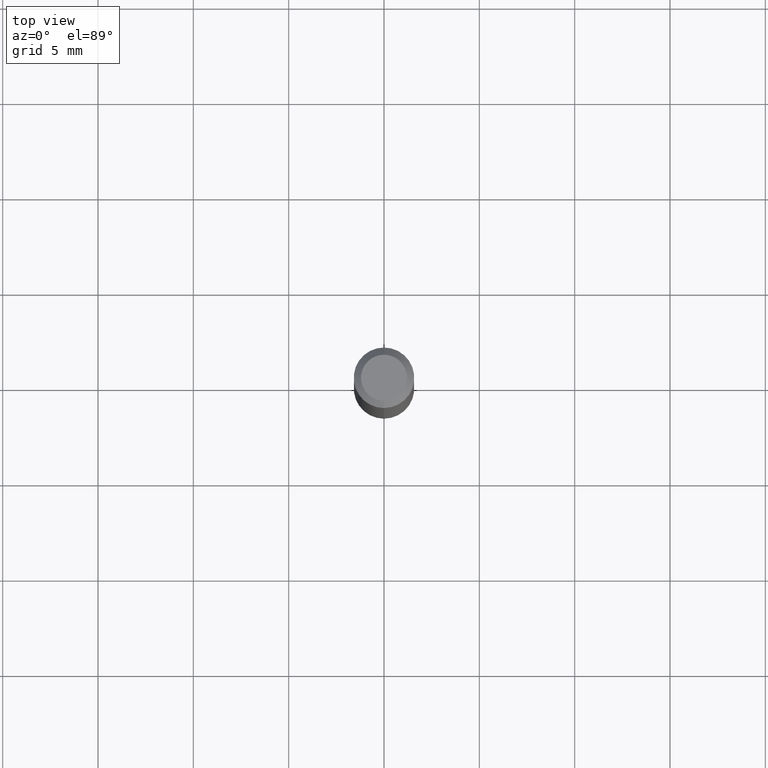
[diagram: clean part render]
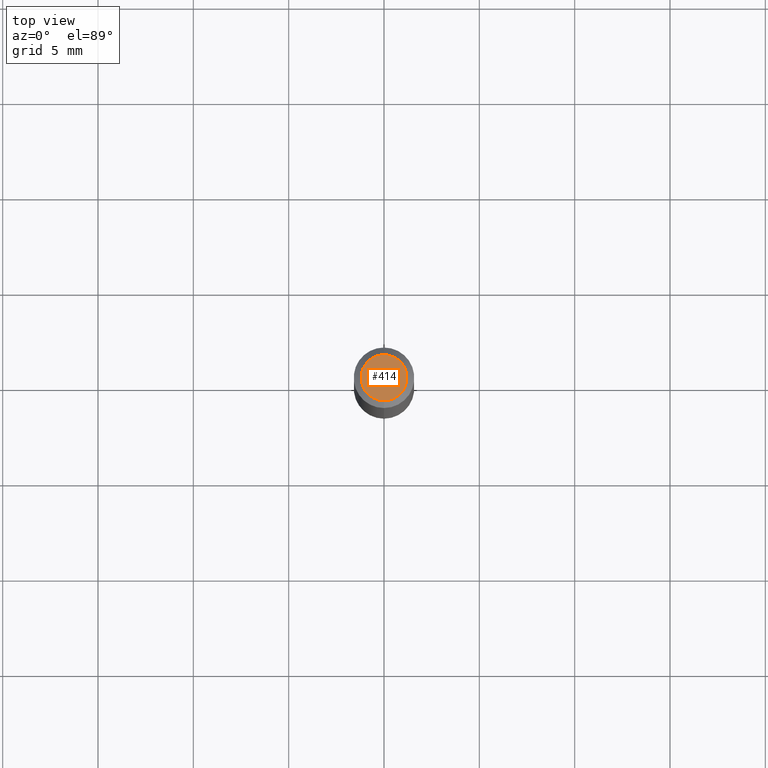
[diagram: same view with one face highlighted and labeled with its STEP entity id]
A machine part, top view. The second image highlights one B-rep face of the part: STEP entity #414.
In plain terms, the highlighted planar face has unit normal (0, -0, -1).
Its self-contained STEP definition (entity closure, byte-faithful):
#6 = AXIS2_PLACEMENT_3D ( 'NONE', #93, #407, #253 ) ;
#59 = VERTEX_POINT ( 'NONE', #277 ) ;
#78 = CIRCLE ( 'NONE', #342, 0.04749999999999999362 ) ;
#93 = CARTESIAN_POINT ( 'NONE',  ( 3.316907271900976096E-16, 0.04749999999999999362, -1.985957238558009581E-16 ) ) ;
#142 = VERTEX_POINT ( 'NONE', #362 ) ;
#145 = ORIENTED_EDGE ( 'NONE', *, *, #218, .T. ) ;
#162 = DIRECTION ( 'NONE',  ( -6.982962677686266711E-15, -1.000000000000000000, 3.491491580298026890E-15 ) ) ;
#207 = EDGE_CURVE ( 'NONE', #142, #59, #435, .T. ) ;
#218 = EDGE_CURVE ( 'NONE', #59, #142, #78, .T. ) ;
#225 = ORIENTED_EDGE ( 'NONE', *, *, #207, .T. ) ;
#240 = DIRECTION ( 'NONE',  ( -2.445461654615416664E-29, 3.491491580298026496E-15, 1.000000000000000000 ) ) ;
#253 = DIRECTION ( 'NONE',  ( 6.982962677686265922E-15, 1.000000000000000000, -3.491491580298026496E-15 ) ) ;
#277 = CARTESIAN_POINT ( 'NONE',  ( 3.840629472727447874E-16, 0.04749999999999999362, -2.313455976474456528E-16 ) ) ;
#293 = FACE_OUTER_BOUND ( 'NONE', #471, .T. ) ;
#327 = CARTESIAN_POINT ( 'NONE',  ( 1.601771211019229148E-45, -2.286918171987008033E-31, -6.549974758328935232E-17 ) ) ;
#342 = AXIS2_PLACEMENT_3D ( 'NONE', #327, #240, #487 ) ;
#362 = CARTESIAN_POINT ( 'NONE',  ( -3.773273898774340269E-16, -0.04749999999999999362, 1.003461024808668988E-16 ) ) ;
#377 = PLANE ( 'NONE',  #6 ) ;
#407 = DIRECTION ( 'NONE',  ( 2.445461654615416384E-29, -3.491491580298026496E-15, -1.000000000000000000 ) ) ;
#414 = ADVANCED_FACE ( 'NONE', ( #293 ), #377, .F. ) ;
#435 = CIRCLE ( 'NONE', #477, 0.04749999999999999362 ) ;
#440 = CARTESIAN_POINT ( 'NONE',  ( 1.601771211019229148E-45, -2.286918171987008033E-31, -6.549974758328935232E-17 ) ) ;
#443 = DIRECTION ( 'NONE',  ( -2.445461654615416664E-29, 3.491491580298026496E-15, 1.000000000000000000 ) ) ;
#471 = EDGE_LOOP ( 'NONE', ( #145, #225 ) ) ;
#477 = AXIS2_PLACEMENT_3D ( 'NONE', #440, #443, #162 ) ;
#487 = DIRECTION ( 'NONE',  ( -6.982962677686266711E-15, -1.000000000000000000, 3.491491580298026890E-15 ) ) ;